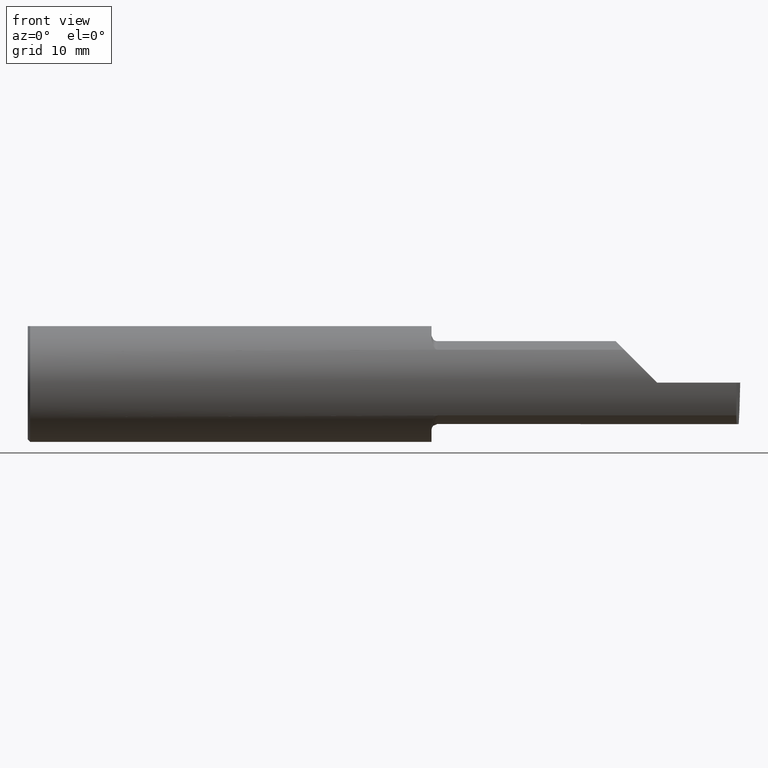
[diagram: clean part render]
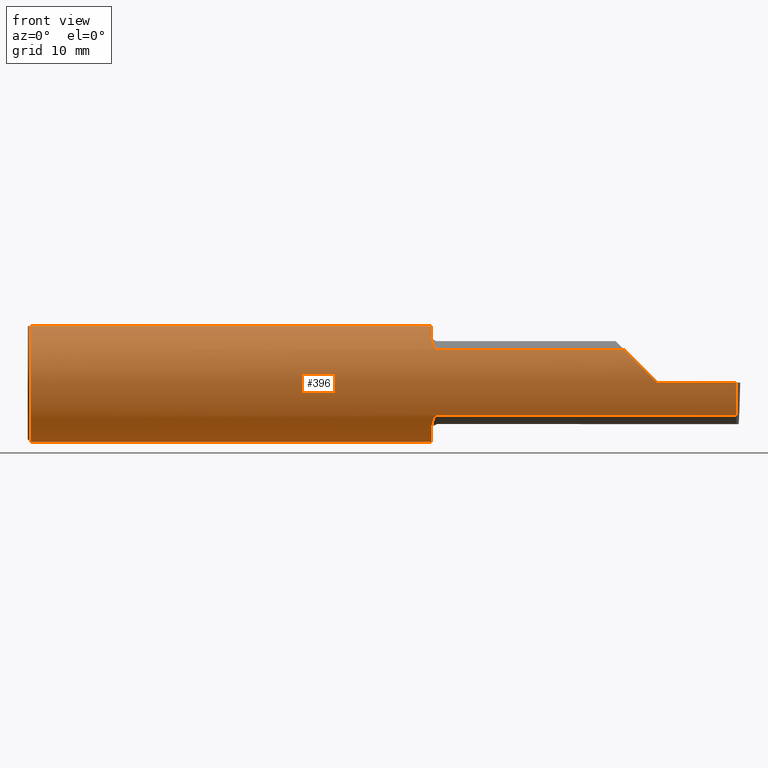
[diagram: same view with one face highlighted and labeled with its STEP entity id]
A machine part, front view. The second image highlights one B-rep face of the part: STEP entity #396.
In plain terms, the highlighted cylindrical surface (partial cylindrical patch) has radius 6.3462 mm, axis along (-1, -0, -0).
Its self-contained STEP definition (entity closure, byte-faithful):
#2 = VERTEX_POINT ( 'NONE', #653 ) ;
#6 = CARTESIAN_POINT ( 'NONE',  ( 1.700000000000000400, -0.1716188362992554783, -0.1820560320165481027 ) ) ;
#7 = ORIENTED_EDGE ( 'NONE', *, *, #140, .F. ) ;
#11 = CARTESIAN_POINT ( 'NONE',  ( 2.983451391416268805, -0.2498499999999999610, -0.04956584089959722994 ) ) ;
#15 = ORIENTED_EDGE ( 'NONE', *, *, #551, .T. ) ;
#36 = VERTEX_POINT ( 'NONE', #596 ) ;
#46 = CARTESIAN_POINT ( 'NONE',  ( 1.700000000000000178, -0.1616050818046603776, 0.1905487340154980724 ) ) ;
#50 = CARTESIAN_POINT ( 'NONE',  ( 0.000000000000000000, 0.000000000000000000, 0.000000000000000000 ) ) ;
#51 = VECTOR ( 'NONE', #179, 39.37007874015748143 ) ;
#55 = CARTESIAN_POINT ( 'NONE',  ( 2.983123056744215962, -0.2355204011147991328, -0.09701513151466793772 ) ) ;
#62 = ORIENTED_EDGE ( 'NONE', *, *, #611, .F. ) ;
#66 = CARTESIAN_POINT ( 'NONE',  ( 1.714302603425052141, -0.2041009206016211608, -0.1441313430770040926 ) ) ;
#70 = LINE ( 'NONE', #454, #470 ) ;
#71 = VECTOR ( 'NONE', #672, 39.37007874015748143 ) ;
#73 = CARTESIAN_POINT ( 'NONE',  ( 2.983360130692194634, -0.2080850024789288044, -0.1382955322609671633 ) ) ;
#77 = EDGE_CURVE ( 'NONE', #679, #467, #462, .T. ) ;
#84 = ORIENTED_EDGE ( 'NONE', *, *, #391, .F. ) ;
#90 = CARTESIAN_POINT ( 'NONE',  ( 0.009999999999999856226, 0.000000000000000000, 0.000000000000000000 ) ) ;
#93 = DIRECTION ( 'NONE',  ( -1.000000000000000000, -0.000000000000000000, -0.000000000000000000 ) ) ;
#98 = CARTESIAN_POINT ( 'NONE',  ( 1.725000000000000089, -0.2080850024789288877, 0.1382955322609669413 ) ) ;
#109 = CARTESIAN_POINT ( 'NONE',  ( 2.983360130692194634, -0.2080850024789288044, -0.1382955322609671633 ) ) ;
#116 = CIRCLE ( 'NONE', #162, 0.2498499999999999888 ) ;
#117 = CARTESIAN_POINT ( 'NONE',  ( 1.708176740666625282, -0.1972027065478072216, -0.1535263573771914747 ) ) ;
#118 = VERTEX_POINT ( 'NONE', #221 ) ;
#122 = CARTESIAN_POINT ( 'NONE',  ( 1.725000000000000089, -0.2080850024789288599, -0.1382955322609669691 ) ) ;
#126 = AXIS2_PLACEMENT_3D ( 'NONE', #90, #651, #359 ) ;
#131 = CARTESIAN_POINT ( 'NONE',  ( 2.552984868485331127, -0.2355204011147990495, 0.09701513151466824303 ) ) ;
#140 = EDGE_CURVE ( 'NONE', #560, #168, #616, .T. ) ;
#148 = CARTESIAN_POINT ( 'NONE',  ( 1.717647060162628581, -0.2062109266231181293, 0.1410799729252291967 ) ) ;
#162 = AXIS2_PLACEMENT_3D ( 'NONE', #466, #405, #342 ) ;
#164 = CARTESIAN_POINT ( 'NONE',  ( 1.712616400345754686, -0.2024684335577100758, 0.1464246884265639204 ) ) ;
#166 = CARTESIAN_POINT ( 'NONE',  ( 4.499279347985562423E-32, -0.2498499999999999610, 3.673940397442054938E-16 ) ) ;
#168 = VERTEX_POINT ( 'NONE', #561 ) ;
#170 = CARTESIAN_POINT ( 'NONE',  ( 1.718863362722770294, -0.2068301641248769807, -0.1401678546132361369 ) ) ;
#179 = DIRECTION ( 'NONE',  ( -1.000000000000000000, 4.247829560181828762E-17, -0.000000000000000000 ) ) ;
#180 = VERTEX_POINT ( 'NONE', #491 ) ;
#182 = CIRCLE ( 'NONE', #238, 0.2498499999999999888 ) ;
#194 =( BOUNDED_CURVE ( )  B_SPLINE_CURVE ( 3, ( #73, #55, #11, #509 ),
 .UNSPECIFIED., .F., .T. ) 
 B_SPLINE_CURVE_WITH_KNOTS ( ( 4, 4 ),
 ( 6.160376845738969820, 6.746954780470629132 ),
 .UNSPECIFIED. ) 
 CURVE ( )  GEOMETRIC_REPRESENTATION_ITEM ( )  RATIONAL_B_SPLINE_CURVE ( ( 1.000000000000000000, 0.9715321379117536349, 0.9715321379117536349, 1.000000000000000000 ) ) 
 REPRESENTATION_ITEM ( '' )  );
#195 = ORIENTED_EDGE ( 'NONE', *, *, #629, .T. ) ;
#196 = EDGE_CURVE ( 'NONE', #168, #393, #297, .T. ) ;
#201 = CYLINDRICAL_SURFACE ( 'NONE', #656, 0.2498499999999999888 ) ;
#203 = CARTESIAN_POINT ( 'NONE',  ( 1.725000000000000089, -0.2080850024789288877, 0.1382955322609669413 ) ) ;
#211 = CARTESIAN_POINT ( 'NONE',  ( 1.706159563508734545, -0.1933019864360848994, 0.1584298865564832404 ) ) ;
#221 = CARTESIAN_POINT ( 'NONE',  ( 2.984317093749864647, -0.2498499999999999888, 0.000000000000000000 ) ) ;
#228 = LINE ( 'NONE', #436, #418 ) ;
#234 = CARTESIAN_POINT ( 'NONE',  ( 0.009999999999999856226, 0.000000000000000000, -0.2498499999999999888 ) ) ;
#238 = AXIS2_PLACEMENT_3D ( 'NONE', #535, #474, #696 ) ;
#250 = VECTOR ( 'NONE', #595, 39.37007874015748143 ) ;
#252 = CARTESIAN_POINT ( 'NONE',  ( 0.009999999999999856226, 0.07650098038587520299, 0.2378499999999998671 ) ) ;
#264 = CARTESIAN_POINT ( 'NONE',  ( 1.700367168219773850, -0.1713400252854602734, 0.1819601557798506131 ) ) ;
#278 = CARTESIAN_POINT ( 'NONE',  ( 1.701385488563270432, -0.1808287530430325307, -0.1728790649396287904 ) ) ;
#279 = EDGE_CURVE ( 'NONE', #686, #679, #527, .T. ) ;
#297 = B_SPLINE_CURVE_WITH_KNOTS ( 'NONE', 3,
 ( #122, #441, #665, #170, #386, #66, #609, #117, #556, #278, #6, #498 ),
 .UNSPECIFIED., .F., .F.,
 ( 4, 2, 2, 2, 2, 4 ),
 ( 1.964491429042083594E-07, 0.0001260981470478416474, 0.0002519998449527791149, 0.0005038032407626400096, 0.001007410032382362666, 0.002014623615621803643 ),
 .UNSPECIFIED. ) ;
#300 = DIRECTION ( 'NONE',  ( 1.000000000000000000, -4.247829560181828762E-17, 0.000000000000000000 ) ) ;
#307 = CARTESIAN_POINT ( 'NONE',  ( 0.000000000000000000, -0.07650098038587520299, 0.2378499999999998671 ) ) ;
#320 = CARTESIAN_POINT ( 'NONE',  ( 1.714343523383978329, -0.2041337200786081940, 0.1440846171672512943 ) ) ;
#321 = EDGE_CURVE ( 'NONE', #180, #698, #70, .T. ) ;
#330 = ORIENTED_EDGE ( 'NONE', *, *, #340, .F. ) ;
#340 = EDGE_CURVE ( 'NONE', #393, #180, #116, .T. ) ;
#342 = DIRECTION ( 'NONE',  ( 0.000000000000000000, 1.000000000000000000, 0.000000000000000000 ) ) ;
#350 = DIRECTION ( 'NONE',  ( 0.000000000000000000, 1.000000000000000000, 0.000000000000000000 ) ) ;
#359 = DIRECTION ( 'NONE',  ( 0.000000000000000000, 0.000000000000000000, -1.000000000000000000 ) ) ;
#360 = ORIENTED_EDGE ( 'NONE', *, *, #657, .T. ) ;
#368 = VERTEX_POINT ( 'NONE', #234 ) ;
#371 = LINE ( 'NONE', #307, #250 ) ;
#380 = CARTESIAN_POINT ( 'NONE',  ( 1.723329956043142763, -0.2080850024798588660, 0.1382955322595677550 ) ) ;
#386 = CARTESIAN_POINT ( 'NONE',  ( 1.717611663768900288, -0.2061921161193829288, -0.1411075319999378352 ) ) ;
#387 = EDGE_LOOP ( 'NONE', ( #7, #15, #195, #360, #62, #403, #428, #84, #411, #664, #562, #330, #459 ) ) ;
#391 = EDGE_CURVE ( 'NONE', #2, #686, #371, .T. ) ;
#393 = VERTEX_POINT ( 'NONE', #704 ) ;
#396 = ADVANCED_FACE ( 'NONE', ( #702 ), #201, .T. ) ;
#399 = CARTESIAN_POINT ( 'NONE',  ( 2.600434159100402987, -0.2498499999999999888, 0.04956584089959736872 ) ) ;
#403 = ORIENTED_EDGE ( 'NONE', *, *, #77, .F. ) ;
#405 = DIRECTION ( 'NONE',  ( 1.000000000000000000, -4.247829560181828762E-17, 0.000000000000000000 ) ) ;
#411 = ORIENTED_EDGE ( 'NONE', *, *, #419, .T. ) ;
#418 = VECTOR ( 'NONE', #447, 39.37007874015748143 ) ;
#419 = EDGE_CURVE ( 'NONE', #2, #368, #492, .T. ) ;
#428 = ORIENTED_EDGE ( 'NONE', *, *, #279, .F. ) ;
#430 = EDGE_CURVE ( 'NONE', #368, #698, #182, .T. ) ;
#436 = CARTESIAN_POINT ( 'NONE',  ( 2.315421434999999750, -0.2080850024789287489, 0.1382955322609671633 ) ) ;
#441 = CARTESIAN_POINT ( 'NONE',  ( 1.723318040126430084, -0.2080850024789289987, -0.1382955322609668858 ) ) ;
#447 = DIRECTION ( 'NONE',  ( 1.000000000000000000, -4.247829560181828762E-17, 0.000000000000000000 ) ) ;
#451 = CARTESIAN_POINT ( 'NONE',  ( 2.315421434999999750, -0.2080850024789287489, -0.1382955322609671633 ) ) ;
#454 = CARTESIAN_POINT ( 'NONE',  ( 0.000000000000000000, 0.07650098038587520299, 0.2378499999999998671 ) ) ;
#459 = ORIENTED_EDGE ( 'NONE', *, *, #196, .F. ) ;
#462 = B_SPLINE_CURVE_WITH_KNOTS ( 'NONE', 3,
 ( #46, #529, #264, #641, #485, #211, #592, #164, #320, #148, #479, #533, #380, #98 ),
 .UNSPECIFIED., .F., .F.,
 ( 4, 2, 2, 2, 2, 2, 4 ),
 ( 0.0003834465838148152454, 0.0008781406165086705221, 0.001372834649202525799, 0.001867528681896382919, 0.002114875698243306491, 0.002238549206416760688, 0.002362222714590214885 ),
 .UNSPECIFIED. ) ;
#466 = CARTESIAN_POINT ( 'NONE',  ( 1.700000000000000178, 0.000000000000000000, 0.000000000000000000 ) ) ;
#467 = VERTEX_POINT ( 'NONE', #203 ) ;
#468 = CARTESIAN_POINT ( 'NONE',  ( 1.700000000000000178, -0.1616050818046603776, 0.1905487340154980724 ) ) ;
#470 = VECTOR ( 'NONE', #693, 39.37007874015748143 ) ;
#474 = DIRECTION ( 'NONE',  ( 1.000000000000000000, 0.000000000000000000, 0.000000000000000000 ) ) ;
#479 = CARTESIAN_POINT ( 'NONE',  ( 1.718876997637615034, -0.2068363917296599241, 0.1401586554522231409 ) ) ;
#485 = CARTESIAN_POINT ( 'NONE',  ( 1.702968662030528879, -0.1849684355203377595, 0.1680843977756268648 ) ) ;
#487 = DIRECTION ( 'NONE',  ( 0.000000000000000000, 0.000000000000000000, 1.000000000000000000 ) ) ;
#491 = CARTESIAN_POINT ( 'NONE',  ( 1.700000000000000178, 0.07650098038587520299, 0.2378499999999998671 ) ) ;
#492 = CIRCLE ( 'NONE', #126, 0.2498499999999999888 ) ;
#498 = CARTESIAN_POINT ( 'NONE',  ( 1.700000000000000178, -0.1616050818046603776, -0.1905487340154980724 ) ) ;
#509 = CARTESIAN_POINT ( 'NONE',  ( 2.984317093749864647, -0.2498499999999999888, 0.000000000000000000 ) ) ;
#512 =( BOUNDED_CURVE ( )  B_SPLINE_CURVE ( 3, ( #676, #399, #131, #622 ),
 .UNSPECIFIED., .F., .F. ) 
 B_SPLINE_CURVE_WITH_KNOTS ( ( 4, 4 ),
 ( 4.712388980384689674, 5.298966915116351650 ),
 .UNSPECIFIED. ) 
 CURVE ( )  GEOMETRIC_REPRESENTATION_ITEM ( )  RATIONAL_B_SPLINE_CURVE ( ( 1.000000000000000000, 0.9715321379117535239, 0.9715321379117535239, 1.000000000000000000 ) ) 
 REPRESENTATION_ITEM ( '' )  );
#524 = VERTEX_POINT ( 'NONE', #636 ) ;
#527 = CIRCLE ( 'NONE', #701, 0.2498499999999999888 ) ;
#529 = CARTESIAN_POINT ( 'NONE',  ( 1.700000000000000178, -0.1665641037263008994, 0.1863429692936361681 ) ) ;
#533 = CARTESIAN_POINT ( 'NONE',  ( 1.721718393013769166, -0.2077830475237240904, 0.1387513848711939002 ) ) ;
#535 = CARTESIAN_POINT ( 'NONE',  ( 0.009999999999999856226, 0.000000000000000000, 0.000000000000000000 ) ) ;
#551 = EDGE_CURVE ( 'NONE', #560, #118, #194, .T. ) ;
#556 = CARTESIAN_POINT ( 'NONE',  ( 1.706147634408388347, -0.1932733126899459919, -0.1584637047788197972 ) ) ;
#560 = VERTEX_POINT ( 'NONE', #109 ) ;
#561 = CARTESIAN_POINT ( 'NONE',  ( 1.725000000000000089, -0.2080850024789288599, -0.1382955322609669691 ) ) ;
#562 = ORIENTED_EDGE ( 'NONE', *, *, #321, .F. ) ;
#571 = CARTESIAN_POINT ( 'NONE',  ( 1.700000000000000178, 0.000000000000000000, 0.000000000000000000 ) ) ;
#592 = CARTESIAN_POINT ( 'NONE',  ( 1.708182335268384477, -0.1972192205116130581, 0.1535061413537210928 ) ) ;
#595 = DIRECTION ( 'NONE',  ( 1.000000000000000000, 0.000000000000000000, 0.000000000000000000 ) ) ;
#596 = CARTESIAN_POINT ( 'NONE',  ( 2.511704467739031443, -0.2080850024789284436, 0.1382955322609674687 ) ) ;
#609 = CARTESIAN_POINT ( 'NONE',  ( 1.712579853086619419, -0.2024300470081734638, -0.1464774911482686348 ) ) ;
#611 = EDGE_CURVE ( 'NONE', #467, #36, #228, .T. ) ;
#616 = LINE ( 'NONE', #451, #51 ) ;
#622 = CARTESIAN_POINT ( 'NONE',  ( 2.511704467739031443, -0.2080850024789284436, 0.1382955322609674687 ) ) ;
#629 = EDGE_CURVE ( 'NONE', #118, #524, #661, .T. ) ;
#636 = CARTESIAN_POINT ( 'NONE',  ( 2.650000000000000355, -0.2498499999999999610, 4.286263797015729199E-17 ) ) ;
#641 = CARTESIAN_POINT ( 'NONE',  ( 1.701849548162864156, -0.1805300287242673496, 0.1728462070311781174 ) ) ;
#644 = CARTESIAN_POINT ( 'NONE',  ( 1.700000000000000178, -0.07650098038587527238, 0.2378499999999998671 ) ) ;
#651 = DIRECTION ( 'NONE',  ( 1.000000000000000000, 0.000000000000000000, 0.000000000000000000 ) ) ;
#653 = CARTESIAN_POINT ( 'NONE',  ( 0.009999999999999856226, -0.07650098038587520299, 0.2378499999999998671 ) ) ;
#656 = AXIS2_PLACEMENT_3D ( 'NONE', #50, #93, #487 ) ;
#657 = EDGE_CURVE ( 'NONE', #524, #36, #512, .T. ) ;
#661 = LINE ( 'NONE', #166, #71 ) ;
#664 = ORIENTED_EDGE ( 'NONE', *, *, #430, .T. ) ;
#665 = CARTESIAN_POINT ( 'NONE',  ( 1.721700027347579098, -0.2077785947292767332, -0.1387580622202826963 ) ) ;
#672 = DIRECTION ( 'NONE',  ( -1.000000000000000000, -0.000000000000000000, -0.000000000000000000 ) ) ;
#676 = CARTESIAN_POINT ( 'NONE',  ( 2.650000000000000355, -0.2498499999999999610, 4.286263797015729199E-17 ) ) ;
#679 = VERTEX_POINT ( 'NONE', #468 ) ;
#686 = VERTEX_POINT ( 'NONE', #644 ) ;
#693 = DIRECTION ( 'NONE',  ( -1.000000000000000000, -0.000000000000000000, -0.000000000000000000 ) ) ;
#696 = DIRECTION ( 'NONE',  ( 0.000000000000000000, 0.000000000000000000, -1.000000000000000000 ) ) ;
#698 = VERTEX_POINT ( 'NONE', #252 ) ;
#701 = AXIS2_PLACEMENT_3D ( 'NONE', #571, #300, #350 ) ;
#702 = FACE_OUTER_BOUND ( 'NONE', #387, .T. ) ;
#704 = CARTESIAN_POINT ( 'NONE',  ( 1.700000000000000178, -0.1616050818046603776, -0.1905487340154980724 ) ) ;